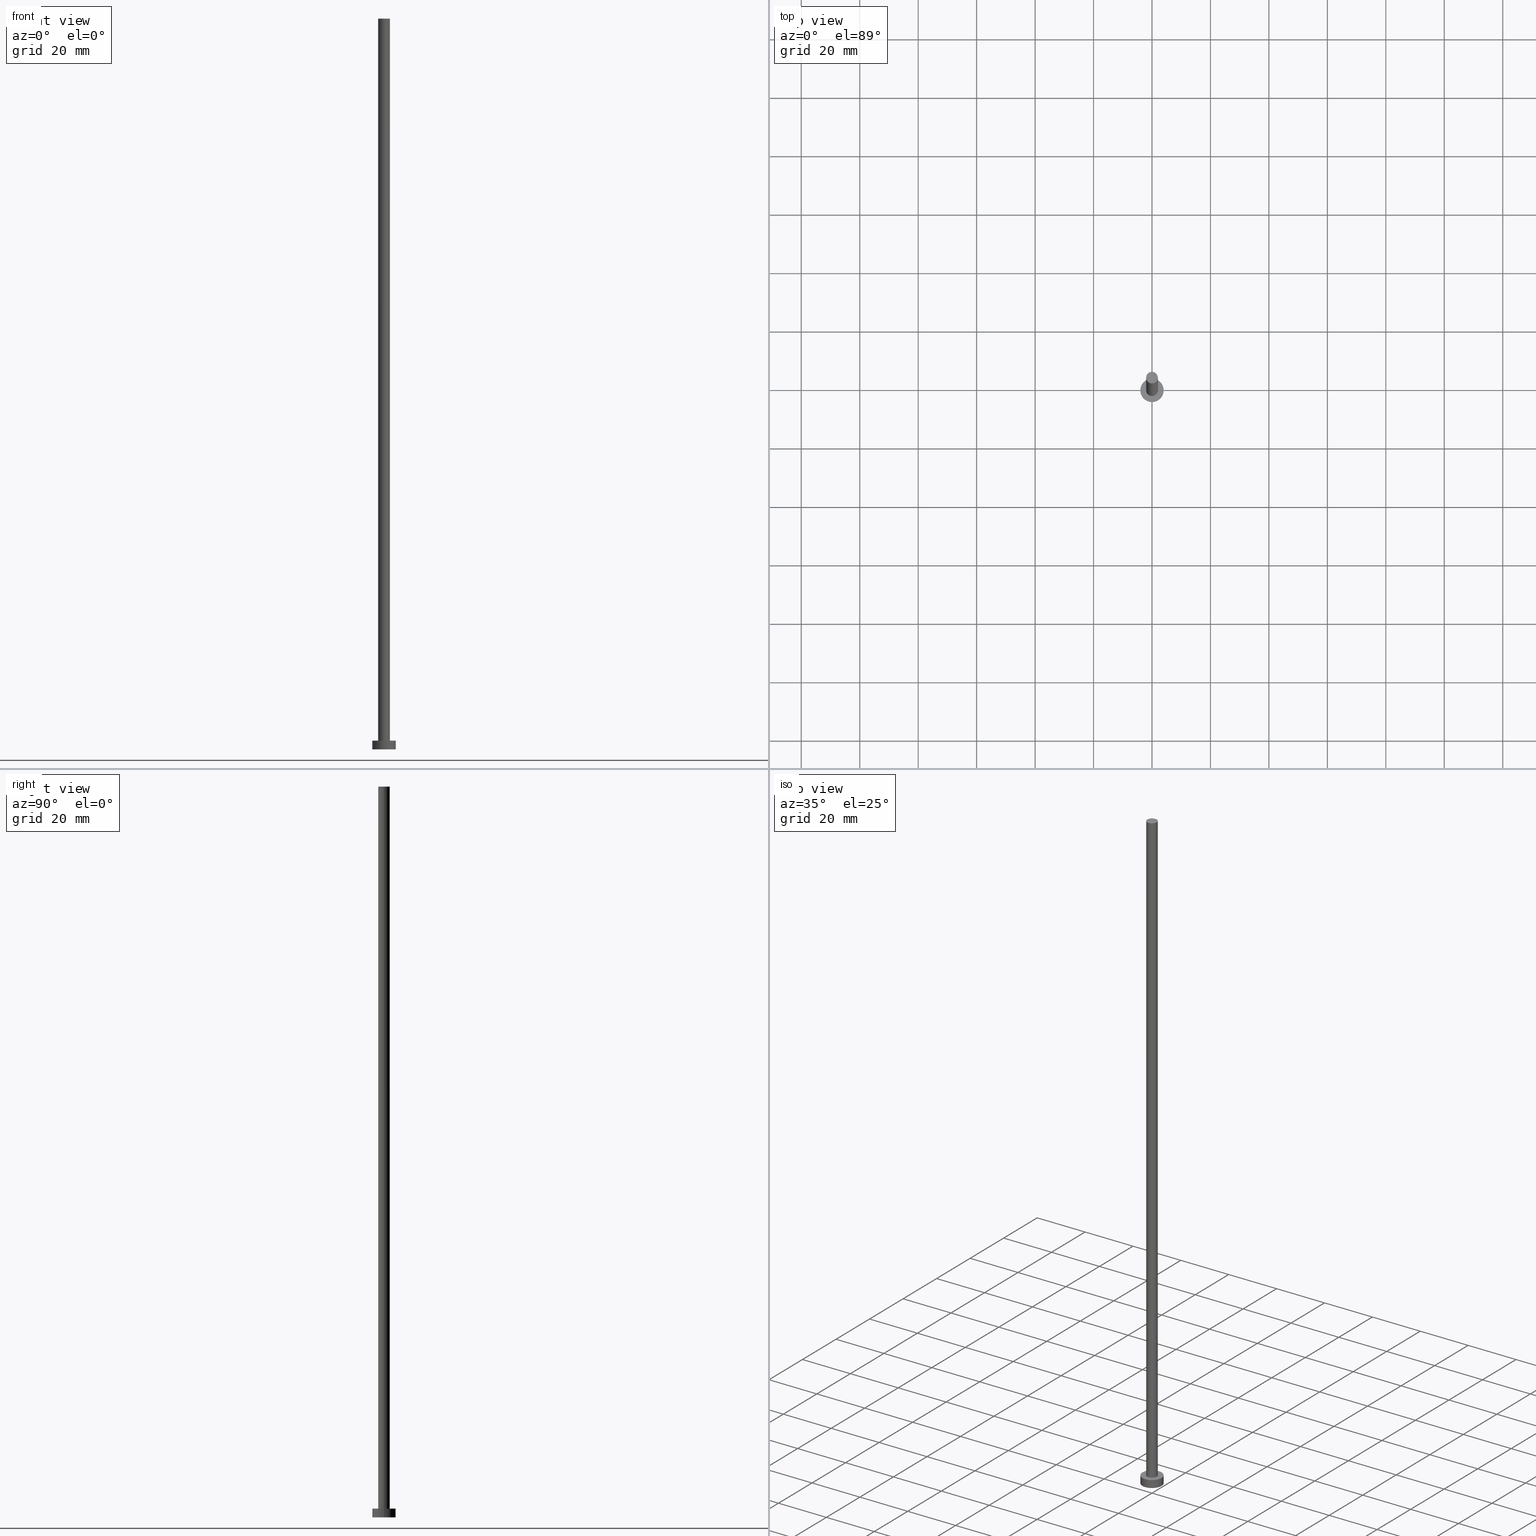
[diagram: canonical four-view strip — front | top / right | iso, engineering-drawing reading convention]
A machine part, canonical four-view strip (front | top / right | iso — engineering-drawing reading convention). The complete STEP part file that produces these views, byte-faithful:
ISO-10303-21;
HEADER;
FILE_DESCRIPTION (( 'STEP AP203' ),
    '1' );
FILE_NAME ('8a18.STEP',
    '2023-02-13T16:10:01',
    ( '' ),
    ( '' ),
    'SwSTEP 2.0',
    'SolidWorks 2019',
    '' );
FILE_SCHEMA (( 'CONFIG_CONTROL_DESIGN' ));
ENDSEC;

DATA;
#1 = LINE ( 'NONE', #213, #196 ) ;
#2 = DATE_AND_TIME ( #167, #75 ) ;
#3 = DIRECTION ( 'NONE',  ( 0.000000000000000000, 0.000000000000000000, 1.000000000000000000 ) ) ;
#4 = CC_DESIGN_SECURITY_CLASSIFICATION ( #198, ( #209 ) ) ;
#5 = DATE_AND_TIME ( #72, #13 ) ;
#6 = AXIS2_PLACEMENT_3D ( 'NONE', #155, #112, #91 ) ;
#7 = FACE_OUTER_BOUND ( 'NONE', #9, .T. ) ;
#8 = ADVANCED_FACE ( 'NONE', ( #251 ), #85, .T. ) ;
#9 = EDGE_LOOP ( 'NONE', ( #80, #178 ) ) ;
#10 = DIRECTION ( 'NONE',  ( -1.000000000000000000, 0.000000000000000000, 0.000000000000000000 ) ) ;
#11 = VERTEX_POINT ( 'NONE', #151 ) ;
#12 = CARTESIAN_POINT ( 'NONE',  ( 0.000000000000000000, 0.000000000000000000, 250.0000000000000000 ) ) ;
#13 = LOCAL_TIME ( 17, 10, 1.000000000000000000, #172 ) ;
#14 = APPLICATION_PROTOCOL_DEFINITION ( 'international standard', 'config_control_design', 1994, #193 ) ;
#15 = PERSON_AND_ORGANIZATION ( #220, #216 ) ;
#16 = CARTESIAN_POINT ( 'NONE',  ( 0.000000000000000000, 0.000000000000000000, 3.000000000000000000 ) ) ;
#17 = EDGE_CURVE ( 'NONE', #224, #35, #218, .T. ) ;
#18 = DIRECTION ( 'NONE',  ( 1.000000000000000000, 0.000000000000000000, 0.000000000000000000 ) ) ;
#19 = DIRECTION ( 'NONE',  ( 1.000000000000000000, 0.000000000000000000, -0.000000000000000000 ) ) ;
#20 = CARTESIAN_POINT ( 'NONE',  ( 0.000000000000000000, 0.000000000000000000, 3.000000000000000000 ) ) ;
#21 = AXIS2_PLACEMENT_3D ( 'NONE', #166, #108, #19 ) ;
#22 = AXIS2_PLACEMENT_3D ( 'NONE', #181, #250, #177 ) ;
#23 = DATE_AND_TIME ( #148, #142 ) ;
#24 = PLANE ( 'NONE',  #38 ) ;
#25 = PERSON_AND_ORGANIZATION ( #220, #216 ) ;
#26 = DIRECTION ( 'NONE',  ( 1.000000000000000000, 0.000000000000000000, 0.000000000000000000 ) ) ;
#27 = VERTEX_POINT ( 'NONE', #234 ) ;
#28 = DIRECTION ( 'NONE',  ( 1.000000000000000000, 0.000000000000000000, 0.000000000000000000 ) ) ;
#29 = EDGE_LOOP ( 'NONE', ( #144, #244 ) ) ;
#30 = DIRECTION ( 'NONE',  ( 0.000000000000000000, 0.000000000000000000, 1.000000000000000000 ) ) ;
#31 = ORIENTED_EDGE ( 'NONE', *, *, #211, .T. ) ;
#32 = AXIS2_PLACEMENT_3D ( 'NONE', #189, #103, #150 ) ;
#33 = CARTESIAN_POINT ( 'NONE',  ( -2.000000000000000000, 0.000000000000000000, 250.0000000000000000 ) ) ;
#34 = APPROVAL ( #199, 'NEUR�EN�' ) ;
#35 = VERTEX_POINT ( 'NONE', #109 ) ;
#36 = CC_DESIGN_DATE_AND_TIME_ASSIGNMENT ( #23, #116, ( #236 ) ) ;
#37 = APPROVAL_STATUS ( 'not_yet_approved' ) ;
#38 = AXIS2_PLACEMENT_3D ( 'NONE', #12, #83, #124 ) ;
#39 = PERSON_AND_ORGANIZATION_ROLE ( 'creator' ) ;
#40 = EDGE_CURVE ( 'NONE', #11, #160, #64, .T. ) ;
#41 = LOCAL_TIME ( 17, 10, 1.000000000000000000, #153 ) ;
#42 = PERSON_AND_ORGANIZATION_ROLE ( 'design_supplier' ) ;
#43 = CC_DESIGN_PERSON_AND_ORGANIZATION_ASSIGNMENT ( #25, #95, ( #198 ) ) ;
#44 = APPLICATION_PROTOCOL_DEFINITION ( 'international standard', 'config_control_design', 1994, #214 ) ;
#45 = CIRCLE ( 'NONE', #105, 4.000000000000000000 ) ;
#46 = APPROVAL_PERSON_ORGANIZATION ( #186, #147, #68 ) ;
#47 = ORIENTED_EDGE ( 'NONE', *, *, #137, .T. ) ;
#48 = CYLINDRICAL_SURFACE ( 'NONE', #128, 2.000000000000000000 ) ;
#49 = CARTESIAN_POINT ( 'NONE',  ( 0.000000000000000000, 0.000000000000000000, 0.000000000000000000 ) ) ;
#50 = ORIENTED_EDGE ( 'NONE', *, *, #40, .F. ) ;
#51 = DIRECTION ( 'NONE',  ( -0.000000000000000000, -0.000000000000000000, -1.000000000000000000 ) ) ;
#52 = CC_DESIGN_APPROVAL ( #70, ( #209 ) ) ;
#53 = CARTESIAN_POINT ( 'NONE',  ( 0.000000000000000000, 0.000000000000000000, 250.0000000000000000 ) ) ;
#54 = APPROVAL_DATE_TIME ( #238, #70 ) ;
#55 = DIRECTION ( 'NONE',  ( 0.000000000000000000, 0.000000000000000000, 1.000000000000000000 ) ) ;
#56 = CC_DESIGN_PERSON_AND_ORGANIZATION_ASSIGNMENT ( #93, #42, ( #209 ) ) ;
#57 = DATE_AND_TIME ( #241, #41 ) ;
#58 = UNCERTAINTY_MEASURE_WITH_UNIT (LENGTH_MEASURE( 1.000000000000000082E-05 ), #252, 'distance_accuracy_value', 'NONE');
#59 = PERSON_AND_ORGANIZATION ( #220, #216 ) ;
#60 = EDGE_LOOP ( 'NONE', ( #74, #125, #31, #227 ) ) ;
#61 = VECTOR ( 'NONE', #179, 1000.000000000000000 ) ;
#62 = EDGE_LOOP ( 'NONE', ( #50, #115, #164, #201 ) ) ;
#63 = CARTESIAN_POINT ( 'NONE',  ( 0.000000000000000000, 0.000000000000000000, 250.0000000000000000 ) ) ;
#64 = CIRCLE ( 'NONE', #32, 4.000000000000000000 ) ;
#65 = EDGE_CURVE ( 'NONE', #160, #11, #45, .T. ) ;
#66 = DIRECTION ( 'NONE',  ( -0.000000000000000000, -0.000000000000000000, -1.000000000000000000 ) ) ;
#67 = COORDINATED_UNIVERSAL_TIME_OFFSET ( 1, 0, .AHEAD. ) ;
#68 = APPROVAL_ROLE ( '' ) ;
#69 = DIRECTION ( 'NONE',  ( -0.000000000000000000, -0.000000000000000000, -1.000000000000000000 ) ) ;
#70 = APPROVAL ( #90, 'NEUR�EN�' ) ;
#71 = DIRECTION ( 'NONE',  ( -0.000000000000000000, -0.000000000000000000, -1.000000000000000000 ) ) ;
#72 = CALENDAR_DATE ( 2023, 13, 2 ) ;
#73 = CC_DESIGN_DATE_AND_TIME_ASSIGNMENT ( #5, #219, ( #198 ) ) ;
#74 = ORIENTED_EDGE ( 'NONE', *, *, #243, .F. ) ;
#75 = LOCAL_TIME ( 17, 10, 1.000000000000000000, #104 ) ;
#76 = APPROVAL_ROLE ( '' ) ;
#77 = PLANE ( 'NONE',  #6 ) ;
#78 = AXIS2_PLACEMENT_3D ( 'NONE', #254, #3, #255 ) ;
#79 = EDGE_CURVE ( 'NONE', #160, #207, #1, .T. ) ;
#80 = ORIENTED_EDGE ( 'NONE', *, *, #65, .T. ) ;
#81 = DIRECTION ( 'NONE',  ( -0.000000000000000000, -0.000000000000000000, -1.000000000000000000 ) ) ;
#82 = CIRCLE ( 'NONE', #78, 4.000000000000000000 ) ;
#83 = DIRECTION ( 'NONE',  ( 0.000000000000000000, 0.000000000000000000, 1.000000000000000000 ) ) ;
#84 = MECHANICAL_CONTEXT ( 'NONE', #193, 'mechanical' ) ;
#85 = CYLINDRICAL_SURFACE ( 'NONE', #190, 4.000000000000000000 ) ;
#86 = CC_DESIGN_PERSON_AND_ORGANIZATION_ASSIGNMENT ( #136, #39, ( #209 ) ) ;
#87 = DIRECTION ( 'NONE',  ( -1.000000000000000000, 0.000000000000000000, 0.000000000000000000 ) ) ;
#88 = CLOSED_SHELL ( 'NONE', ( #245, #92, #8, #165, #97, #194, #176 ) ) ;
#89 = DIRECTION ( 'NONE',  ( 1.000000000000000000, 0.000000000000000000, 0.000000000000000000 ) ) ;
#90 = APPROVAL_STATUS ( 'not_yet_approved' ) ;
#91 = DIRECTION ( 'NONE',  ( 1.000000000000000000, 0.000000000000000000, -0.000000000000000000 ) ) ;
#92 = ADVANCED_FACE ( 'NONE', ( #132 ), #168, .T. ) ;
#93 = PERSON_AND_ORGANIZATION ( #220, #216 ) ;
#94 = APPROVAL_PERSON_ORGANIZATION ( #111, #70, #76 ) ;
#95 = PERSON_AND_ORGANIZATION_ROLE ( 'classification_officer' ) ;
#96 = PRODUCT ( '8a18', '8a18', '', ( #84 ) ) ;
#97 = ADVANCED_FACE ( 'NONE', ( #131 ), #210, .F. ) ;
#98 = DIRECTION ( 'NONE',  ( 1.000000000000000000, 0.000000000000000000, 0.000000000000000000 ) ) ;
#99 = CARTESIAN_POINT ( 'NONE',  ( 4.000000000000000000, 4.898587196589412829E-16, 3.000000000000000000 ) ) ;
#100 = ORIENTED_EDGE ( 'NONE', *, *, #65, .F. ) ;
#101 = LINE ( 'NONE', #99, #61 ) ;
#102 = ORIENTED_EDGE ( 'NONE', *, *, #17, .T. ) ;
#103 = DIRECTION ( 'NONE',  ( 0.000000000000000000, 0.000000000000000000, 1.000000000000000000 ) ) ;
#104 = COORDINATED_UNIVERSAL_TIME_OFFSET ( 1, 0, .AHEAD. ) ;
#105 = AXIS2_PLACEMENT_3D ( 'NONE', #20, #170, #89 ) ;
#106 = CC_DESIGN_APPROVAL ( #147, ( #236 ) ) ;
#107 = DIRECTION ( 'NONE',  ( -1.000000000000000000, 0.000000000000000000, 0.000000000000000000 ) ) ;
#108 = DIRECTION ( 'NONE',  ( 0.000000000000000000, 0.000000000000000000, 1.000000000000000000 ) ) ;
#109 = CARTESIAN_POINT ( 'NONE',  ( 2.000000000000000000, 2.449293598294706414E-16, 3.000000000000000000 ) ) ;
#110 = AXIS2_PLACEMENT_3D ( 'NONE', #53, #135, #212 ) ;
#111 = PERSON_AND_ORGANIZATION ( #220, #216 ) ;
#112 = DIRECTION ( 'NONE',  ( 0.000000000000000000, 0.000000000000000000, 1.000000000000000000 ) ) ;
#113 = AXIS2_PLACEMENT_3D ( 'NONE', #159, #200, #98 ) ;
#114 = FACE_BOUND ( 'NONE', #29, .T. ) ;
#115 = ORIENTED_EDGE ( 'NONE', *, *, #217, .T. ) ;
#116 = DATE_TIME_ROLE ( 'creation_date' ) ;
#117 = PERSON_AND_ORGANIZATION ( #220, #216 ) ;
#118 = EDGE_CURVE ( 'NONE', #202, #207, #82, .T. ) ;
#119 = CARTESIAN_POINT ( 'NONE',  ( 2.000000000000000000, 2.449293598294706414E-16, 250.0000000000000000 ) ) ;
#120 = DIRECTION ( 'NONE',  ( 0.000000000000000000, 0.000000000000000000, 1.000000000000000000 ) ) ;
#121 = CC_DESIGN_PERSON_AND_ORGANIZATION_ASSIGNMENT ( #59, #141, ( #96 ) ) ;
#122 = CIRCLE ( 'NONE', #22, 2.000000000000000000 ) ;
#123 = FACE_OUTER_BOUND ( 'NONE', #180, .T. ) ;
#124 = DIRECTION ( 'NONE',  ( 1.000000000000000000, 0.000000000000000000, -0.000000000000000000 ) ) ;
#125 = ORIENTED_EDGE ( 'NONE', *, *, #157, .T. ) ;
#126 = CARTESIAN_POINT ( 'NONE',  ( 0.000000000000000000, 0.000000000000000000, 3.000000000000000000 ) ) ;
#127 = ORIENTED_EDGE ( 'NONE', *, *, #217, .F. ) ;
#128 = AXIS2_PLACEMENT_3D ( 'NONE', #204, #81, #226 ) ;
#129 = EDGE_CURVE ( 'NONE', #246, #224, #237, .T. ) ;
#130 = EDGE_LOOP ( 'NONE', ( #47, #242 ) ) ;
#131 = FACE_OUTER_BOUND ( 'NONE', #232, .T. ) ;
#132 = FACE_OUTER_BOUND ( 'NONE', #62, .T. ) ;
#133 = MANIFOLD_SOLID_BREP ( 'P�idat vysunut�m3', #88 ) ;
#134 = APPROVAL_DATE_TIME ( #2, #147 ) ;
#135 = DIRECTION ( 'NONE',  ( 0.000000000000000000, 0.000000000000000000, 1.000000000000000000 ) ) ;
#136 = PERSON_AND_ORGANIZATION ( #220, #216 ) ;
#137 = EDGE_CURVE ( 'NONE', #246, #27, #231, .T. ) ;
#138 = CIRCLE ( 'NONE', #233, 4.000000000000000000 ) ;
#139 = SECURITY_CLASSIFICATION_LEVEL ( 'unclassified' ) ;
#140 = LINE ( 'NONE', #119, #215 ) ;
#141 = PERSON_AND_ORGANIZATION_ROLE ( 'design_owner' ) ;
#142 = LOCAL_TIME ( 17, 10, 1.000000000000000000, #67 ) ;
#143 = CARTESIAN_POINT ( 'NONE',  ( -4.000000000000000000, 0.000000000000000000, 0.000000000000000000 ) ) ;
#144 = ORIENTED_EDGE ( 'NONE', *, *, #17, .F. ) ;
#145 = ORIENTED_EDGE ( 'NONE', *, *, #230, .T. ) ;
#146 = CARTESIAN_POINT ( 'NONE',  ( -2.000000000000000000, 0.000000000000000000, 250.0000000000000000 ) ) ;
#147 = APPROVAL ( #37, 'NEUR�EN�' ) ;
#148 = CALENDAR_DATE ( 2023, 13, 2 ) ;
#149 = APPROVAL_PERSON_ORGANIZATION ( #117, #34, #152 ) ;
#150 = DIRECTION ( 'NONE',  ( 1.000000000000000000, 0.000000000000000000, 0.000000000000000000 ) ) ;
#151 = CARTESIAN_POINT ( 'NONE',  ( 4.000000000000000000, 4.898587196589412829E-16, 3.000000000000000000 ) ) ;
#152 = APPROVAL_ROLE ( '' ) ;
#153 = COORDINATED_UNIVERSAL_TIME_OFFSET ( 1, 0, .AHEAD. ) ;
#154 = CC_DESIGN_PERSON_AND_ORGANIZATION_ASSIGNMENT ( #15, #188, ( #236 ) ) ;
#155 = CARTESIAN_POINT ( 'NONE',  ( 0.000000000000000000, 0.000000000000000000, 3.000000000000000000 ) ) ;
#156 = AXIS2_PLACEMENT_3D ( 'NONE', #63, #184, #10 ) ;
#157 = EDGE_CURVE ( 'NONE', #27, #35, #140, .T. ) ;
#158 = DESIGN_CONTEXT ( 'detailed design', #214, 'design' ) ;
#159 = CARTESIAN_POINT ( 'NONE',  ( 0.000000000000000000, 0.000000000000000000, 0.000000000000000000 ) ) ;
#160 = VERTEX_POINT ( 'NONE', #192 ) ;
#161 = FACE_OUTER_BOUND ( 'NONE', #60, .T. ) ;
#162 = AXIS2_PLACEMENT_3D ( 'NONE', #169, #55, #18 ) ;
#163 = CARTESIAN_POINT ( 'NONE',  ( -2.000000000000000000, 0.000000000000000000, 3.000000000000000000 ) ) ;
#164 = ORIENTED_EDGE ( 'NONE', *, *, #118, .T. ) ;
#165 = ADVANCED_FACE ( 'NONE', ( #114, #7 ), #77, .T. ) ;
#166 = CARTESIAN_POINT ( 'NONE',  ( 0.000000000000000000, 0.000000000000000000, 0.000000000000000000 ) ) ;
#167 = CALENDAR_DATE ( 2023, 13, 2 ) ;
#168 = CYLINDRICAL_SURFACE ( 'NONE', #206, 4.000000000000000000 ) ;
#169 = CARTESIAN_POINT ( 'NONE',  ( 0.000000000000000000, 0.000000000000000000, 3.000000000000000000 ) ) ;
#170 = DIRECTION ( 'NONE',  ( 0.000000000000000000, 0.000000000000000000, 1.000000000000000000 ) ) ;
#171 = FACE_OUTER_BOUND ( 'NONE', #130, .T. ) ;
#172 = COORDINATED_UNIVERSAL_TIME_OFFSET ( 1, 0, .AHEAD. ) ;
#173 = SHAPE_DEFINITION_REPRESENTATION ( #187, #203 ) ;
#174 = PRODUCT_RELATED_PRODUCT_CATEGORY ( 'detail', '', ( #96 ) ) ;
#175 = CALENDAR_DATE ( 2023, 13, 2 ) ;
#176 = ADVANCED_FACE ( 'NONE', ( #171 ), #24, .T. ) ;
#177 = DIRECTION ( 'NONE',  ( 1.000000000000000000, 0.000000000000000000, 0.000000000000000000 ) ) ;
#178 = ORIENTED_EDGE ( 'NONE', *, *, #40, .T. ) ;
#179 = DIRECTION ( 'NONE',  ( -0.000000000000000000, -0.000000000000000000, -1.000000000000000000 ) ) ;
#180 = EDGE_LOOP ( 'NONE', ( #223, #248, #229, #102 ) ) ;
#181 = CARTESIAN_POINT ( 'NONE',  ( 0.000000000000000000, 0.000000000000000000, 250.0000000000000000 ) ) ;
#182 = ORIENTED_EDGE ( 'NONE', *, *, #230, .F. ) ;
#183 = CC_DESIGN_APPROVAL ( #34, ( #198 ) ) ;
#184 = DIRECTION ( 'NONE',  ( -0.000000000000000000, -0.000000000000000000, -1.000000000000000000 ) ) ;
#185 = ORIENTED_EDGE ( 'NONE', *, *, #79, .T. ) ;
#186 = PERSON_AND_ORGANIZATION ( #220, #216 ) ;
#187 = PRODUCT_DEFINITION_SHAPE ( 'NONE', 'NONE',  #236 ) ;
#188 = PERSON_AND_ORGANIZATION_ROLE ( 'creator' ) ;
#189 = CARTESIAN_POINT ( 'NONE',  ( 0.000000000000000000, 0.000000000000000000, 3.000000000000000000 ) ) ;
#190 = AXIS2_PLACEMENT_3D ( 'NONE', #208, #71, #107 ) ;
#191 =( GEOMETRIC_REPRESENTATION_CONTEXT ( 3 ) GLOBAL_UNCERTAINTY_ASSIGNED_CONTEXT ( ( #58 ) ) GLOBAL_UNIT_ASSIGNED_CONTEXT ( ( #252, #228, #247 ) ) REPRESENTATION_CONTEXT ( 'NONE', 'WORKASPACE' ) );
#192 = CARTESIAN_POINT ( 'NONE',  ( -4.000000000000000000, 0.000000000000000000, 3.000000000000000000 ) ) ;
#193 = APPLICATION_CONTEXT ( 'configuration controlled 3d designs of mechanical parts and assemblies' ) ;
#194 = ADVANCED_FACE ( 'NONE', ( #123 ), #48, .T. ) ;
#195 = DIRECTION ( 'NONE',  ( -0.000000000000000000, -0.000000000000000000, -1.000000000000000000 ) ) ;
#196 = VECTOR ( 'NONE', #69, 1000.000000000000000 ) ;
#197 = COORDINATED_UNIVERSAL_TIME_OFFSET ( 1, 0, .AHEAD. ) ;
#198 = SECURITY_CLASSIFICATION ( '', '', #139 ) ;
#199 = APPROVAL_STATUS ( 'not_yet_approved' ) ;
#200 = DIRECTION ( 'NONE',  ( 0.000000000000000000, 0.000000000000000000, 1.000000000000000000 ) ) ;
#201 = ORIENTED_EDGE ( 'NONE', *, *, #79, .F. ) ;
#202 = VERTEX_POINT ( 'NONE', #222 ) ;
#203 = ADVANCED_BREP_SHAPE_REPRESENTATION ( '8a18', ( #133, #113 ), #191 ) ;
#204 = CARTESIAN_POINT ( 'NONE',  ( 0.000000000000000000, 0.000000000000000000, 250.0000000000000000 ) ) ;
#205 = EDGE_LOOP ( 'NONE', ( #127, #100, #185, #145 ) ) ;
#206 = AXIS2_PLACEMENT_3D ( 'NONE', #16, #66, #87 ) ;
#207 = VERTEX_POINT ( 'NONE', #143 ) ;
#208 = CARTESIAN_POINT ( 'NONE',  ( 0.000000000000000000, 0.000000000000000000, 3.000000000000000000 ) ) ;
#209 = PRODUCT_DEFINITION_FORMATION_WITH_SPECIFIED_SOURCE ( 'LIBOVOLN�', '', #96, .NOT_KNOWN. ) ;
#210 = PLANE ( 'NONE',  #21 ) ;
#211 = EDGE_CURVE ( 'NONE', #35, #224, #240, .T. ) ;
#212 = DIRECTION ( 'NONE',  ( 1.000000000000000000, 0.000000000000000000, 0.000000000000000000 ) ) ;
#213 = CARTESIAN_POINT ( 'NONE',  ( -4.000000000000000000, 0.000000000000000000, 3.000000000000000000 ) ) ;
#214 = APPLICATION_CONTEXT ( 'configuration controlled 3d designs of mechanical parts and assemblies' ) ;
#215 = VECTOR ( 'NONE', #195, 1000.000000000000000 ) ;
#216 = ORGANIZATION ( 'NEUR�EN�', 'NEUR�EN�', '' ) ;
#217 = EDGE_CURVE ( 'NONE', #11, #202, #101, .T. ) ;
#218 = CIRCLE ( 'NONE', #162, 2.000000000000000000 ) ;
#219 = DATE_TIME_ROLE ( 'classification_date' ) ;
#220 = PERSON ( 'NEUR�EN�', 'NEUR�EN�', 'NEUR�EN�', ('NEUR�EN�'), ('NEUR�EN�'), ('NEUR�EN�') ) ;
#221 = CYLINDRICAL_SURFACE ( 'NONE', #156, 2.000000000000000000 ) ;
#222 = CARTESIAN_POINT ( 'NONE',  ( 4.000000000000000000, 4.898587196589412829E-16, 0.000000000000000000 ) ) ;
#223 = ORIENTED_EDGE ( 'NONE', *, *, #157, .F. ) ;
#224 = VERTEX_POINT ( 'NONE', #163 ) ;
#225 = AXIS2_PLACEMENT_3D ( 'NONE', #126, #30, #28 ) ;
#226 = DIRECTION ( 'NONE',  ( -1.000000000000000000, 0.000000000000000000, 0.000000000000000000 ) ) ;
#227 = ORIENTED_EDGE ( 'NONE', *, *, #129, .F. ) ;
#228 =( NAMED_UNIT ( * ) PLANE_ANGLE_UNIT ( ) SI_UNIT ( $, .RADIAN. ) );
#229 = ORIENTED_EDGE ( 'NONE', *, *, #129, .T. ) ;
#230 = EDGE_CURVE ( 'NONE', #207, #202, #138, .T. ) ;
#231 = CIRCLE ( 'NONE', #110, 2.000000000000000000 ) ;
#232 = EDGE_LOOP ( 'NONE', ( #182, #253 ) ) ;
#233 = AXIS2_PLACEMENT_3D ( 'NONE', #49, #120, #26 ) ;
#234 = CARTESIAN_POINT ( 'NONE',  ( 2.000000000000000000, 2.449293598294706414E-16, 250.0000000000000000 ) ) ;
#235 = VECTOR ( 'NONE', #51, 1000.000000000000000 ) ;
#236 = PRODUCT_DEFINITION ( 'NEZN�M�', '', #209, #158 ) ;
#237 = LINE ( 'NONE', #146, #235 ) ;
#238 = DATE_AND_TIME ( #175, #249 ) ;
#239 = APPROVAL_DATE_TIME ( #57, #34 ) ;
#240 = CIRCLE ( 'NONE', #225, 2.000000000000000000 ) ;
#241 = CALENDAR_DATE ( 2023, 13, 2 ) ;
#242 = ORIENTED_EDGE ( 'NONE', *, *, #243, .T. ) ;
#243 = EDGE_CURVE ( 'NONE', #27, #246, #122, .T. ) ;
#244 = ORIENTED_EDGE ( 'NONE', *, *, #211, .F. ) ;
#245 = ADVANCED_FACE ( 'NONE', ( #161 ), #221, .T. ) ;
#246 = VERTEX_POINT ( 'NONE', #33 ) ;
#247 =( NAMED_UNIT ( * ) SI_UNIT ( $, .STERADIAN. ) SOLID_ANGLE_UNIT ( ) );
#248 = ORIENTED_EDGE ( 'NONE', *, *, #137, .F. ) ;
#249 = LOCAL_TIME ( 17, 10, 1.000000000000000000, #197 ) ;
#250 = DIRECTION ( 'NONE',  ( 0.000000000000000000, 0.000000000000000000, 1.000000000000000000 ) ) ;
#251 = FACE_OUTER_BOUND ( 'NONE', #205, .T. ) ;
#252 =( LENGTH_UNIT ( ) NAMED_UNIT ( * ) SI_UNIT ( .MILLI., .METRE. ) );
#253 = ORIENTED_EDGE ( 'NONE', *, *, #118, .F. ) ;
#254 = CARTESIAN_POINT ( 'NONE',  ( 0.000000000000000000, 0.000000000000000000, 0.000000000000000000 ) ) ;
#255 = DIRECTION ( 'NONE',  ( 1.000000000000000000, 0.000000000000000000, 0.000000000000000000 ) ) ;
ENDSEC;
END-ISO-10303-21;
